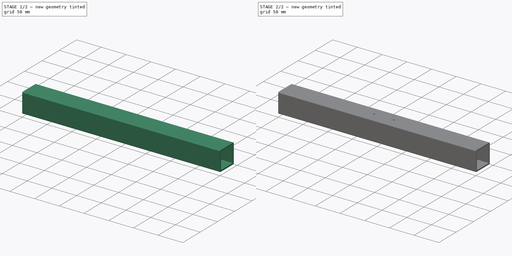
[diagram: build sequence overview — one tinted view per stage of 2, left to right]
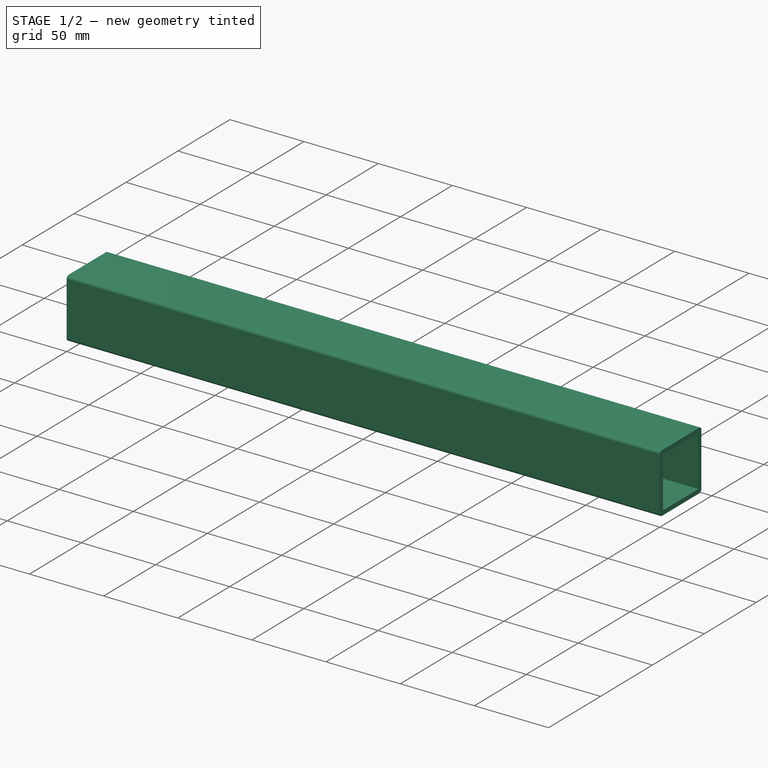
[diagram: stage 1 of 2 — iso view after this stage's code; geometry added in this stage tinted green]
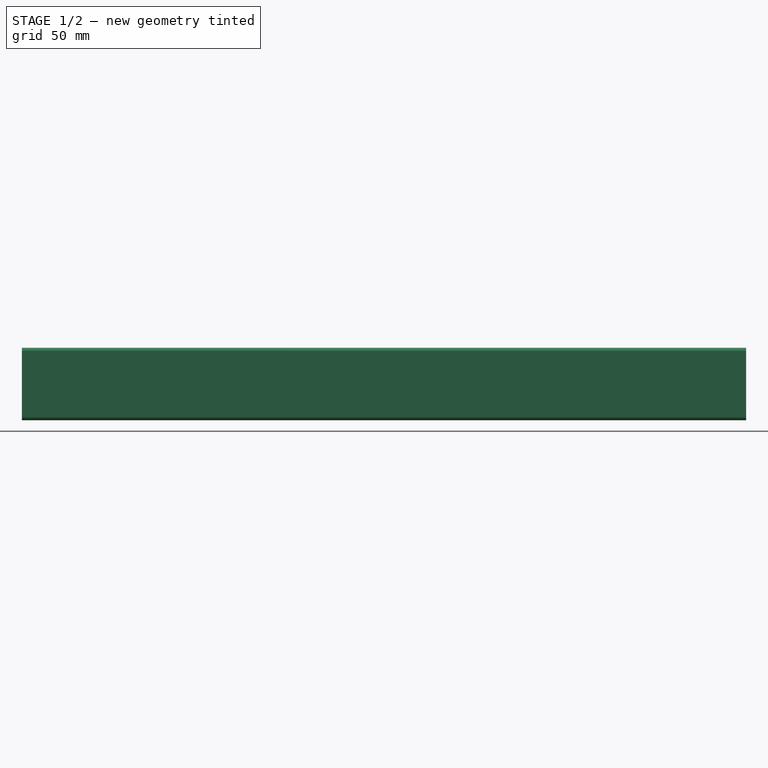
[diagram: stage 1 of 2 — front view after this stage's code; geometry added in this stage tinted green]
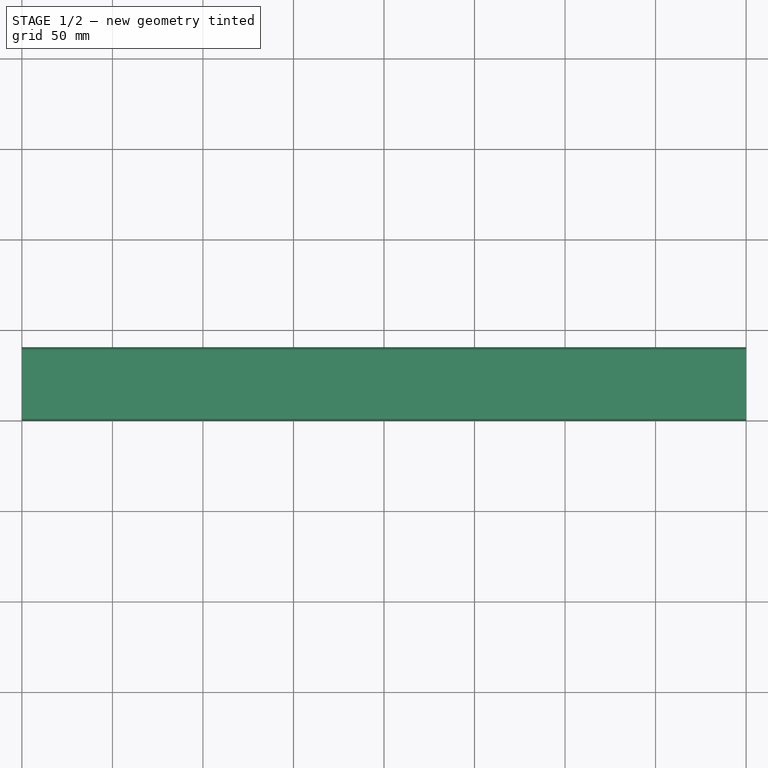
[diagram: stage 1 of 2 — top view after this stage's code; geometry added in this stage tinted green]
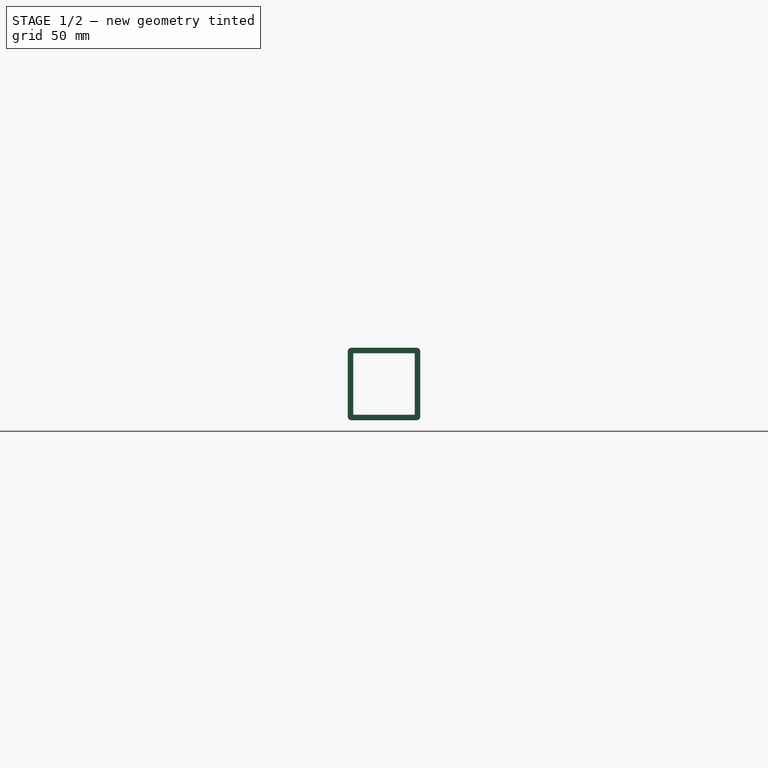
[diagram: stage 1 of 2 — right view after this stage's code; geometry added in this stage tinted green]
FCSTD DOCUMENT  (FreeCAD 1.0R39319 (Git))
Label: x-stepper-mounting-profile
License: All rights reserved
LicenseURL: http://en.wikipedia.org/wiki/All_rights_reserved
objects: Sketcher::SketchObject×2, PartDesign::Pad×1, PartDesign::Hole×1, PartDesign::Body×1, App::Part×1
note: 11 computed .brp shape members not serialized (recipe doc carries the construction recipe); baked Part::Feature solids carry a one-line shape summary decoded from their .brp

FEATURE [Sketcher::SketchObject] Sketch
  ArcFitTolerance = 1e-06
  AttachmentSupport = -> [YZ_Plane]
  FullyConstrained = true
  MakeInternals = false
  MapMode = 5
  Placement = pos=(0,0,0) rot=(0.57735,0.57735,0.57735;2.0944rad)
  sketch-geometry (18):
    g0: LineSegment StartX=2 StartY=0 StartZ=0 EndX=38 EndY=0 EndZ=0
    g1: LineSegment StartX=40 StartY=2 StartZ=0 EndX=40 EndY=38 EndZ=0
    g2: LineSegment StartX=38 StartY=40 StartZ=0 EndX=2 EndY=40 EndZ=0
    g3: LineSegment StartX=0 StartY=38 StartZ=0 EndX=0 EndY=2 EndZ=0
    g4: ArcOfCircle CenterX=2 CenterY=2 CenterZ=0 NormalX=0 NormalY=0 NormalZ=1 AngleXU=0 Radius=2 StartAngle=3.14159 EndAngle=4.71239
    g5: ArcOfCircle CenterX=38 CenterY=2 CenterZ=0 NormalX=0 NormalY=0 NormalZ=1 AngleXU=0 Radius=2 StartAngle=4.71239 EndAngle=6.28319
    g6: ArcOfCircle CenterX=38 CenterY=38 CenterZ=0 NormalX=0 NormalY=0 NormalZ=1 AngleXU=0 Radius=2 StartAngle=0 EndAngle=1.5708
    g7: ArcOfCircle CenterX=2 CenterY=38 CenterZ=0 NormalX=0 NormalY=0 NormalZ=1 AngleXU=0 Radius=2 StartAngle=1.5708 EndAngle=3.14159
    g8: LineSegment StartX=3 StartY=3 StartZ=0 EndX=37 EndY=3 EndZ=0
    g9: LineSegment StartX=37 StartY=3 StartZ=0 EndX=37 EndY=37 EndZ=0
    g10: LineSegment StartX=37 StartY=37 StartZ=0 EndX=3 EndY=37 EndZ=0
    g11: LineSegment StartX=3 StartY=37 StartZ=0 EndX=3 EndY=3 EndZ=0
    g12: LineSegment [constr] StartX=2 StartY=2 StartZ=0 EndX=3 EndY=3 EndZ=0
    g13: LineSegment [constr] StartX=38 StartY=2 StartZ=0 EndX=37 EndY=3 EndZ=0
    g14: LineSegment [constr] StartX=38 StartY=38 StartZ=0 EndX=37 EndY=37 EndZ=0
    g15: LineSegment [constr] StartX=2 StartY=38 StartZ=0 EndX=3 EndY=37 EndZ=0
    g16: GeomPoint [constr] X=0 Y=0 Z=0
    g17: GeomPoint [constr] X=40 Y=40 Z=0
  constraints (43):
    c: Tangent(g0,g4) = -1.5708
    c: Tangent(g0,g5) = -1.5708
    c: Tangent(g1,g5) = -1.5708
    c: Tangent(g1,g6) = -1.5708
    c: Tangent(g2,g6) = -1.5708
    c: Tangent(g2,g7) = -1.5708
    c: Tangent(g3,g7) = -1.5708
    c: Tangent(g3,g4) = -1.5708
    c: Horizontal(g0)
    c: Horizontal(g2)
    c: Vertical(g1)
    c: Vertical(g3)
    c: Equal(g4,g5)
    c: Equal(g5,g6)
    c: Equal(g6,g7)
    c: Coincident(g8,g9)
    c: Coincident(g9,g10)
    c: Coincident(g10,g11)
    c: Coincident(g11,g8)
    c: Horizontal(g8)
    c: Horizontal(g10)
    c: Vertical(g9)
    c: Vertical(g11)
    c: Coincident(g12,g4)
    c: Coincident(g12,g8)
    c: Coincident(g13,g5)
    c: Coincident(g13,g9)
    c: Coincident(g14,g6)
    c: Coincident(g14,g10)
    c: Coincident(g15,g7)
    c: Coincident(g15,g11)
    c: Perpendicular(g12,g13)
    c: Perpendicular(g13,g14)
    c: Perpendicular(g14,g15)
    c: PointOnObject(g16,g0)
    c: PointOnObject(g16,g3)
    c: PointOnObject(g17,g1)
    c: PointOnObject(g17,g2)
    c: Distance(g1,g3) = 40
    c: Distance(g0,g2) = 40
    c: Radius(g5) = 2
    c: Distance(g8,g0) = 3
    c: Coincident(g16,g-1)
FEATURE [PartDesign::Pad] Pad
  Direction = (1,0,0)
  Length = 400
  Length2 = 10
  Placement = pos=(0,0,0) rot=(1,1,1;2.0944rad)
  Profile = -> Sketch
  ReferenceAxis = -> Sketch [N_Axis]
  Suppressed = false
  Type = 0
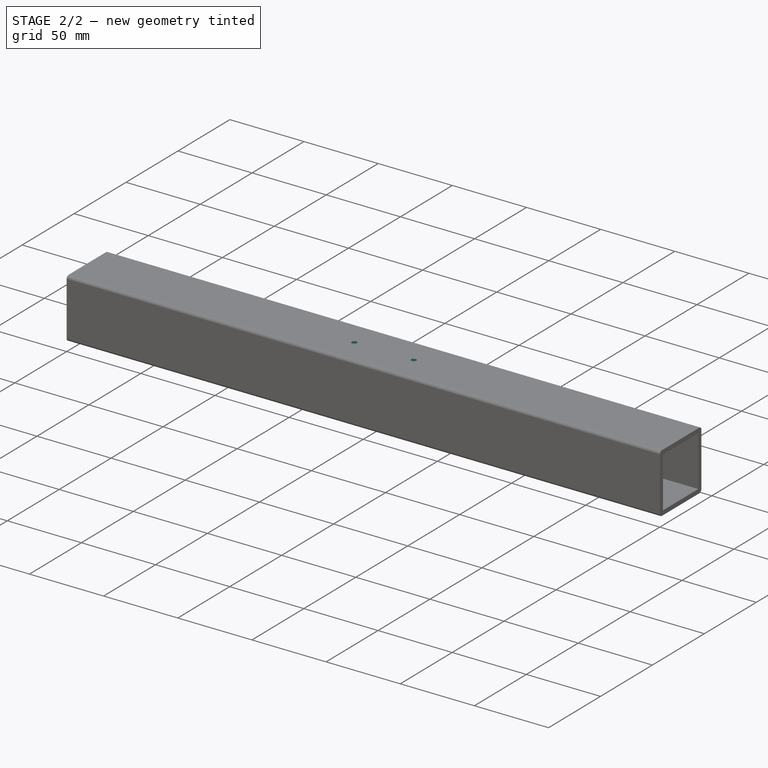
[diagram: stage 2 of 2 — iso view after this stage's code; geometry added in this stage tinted green]
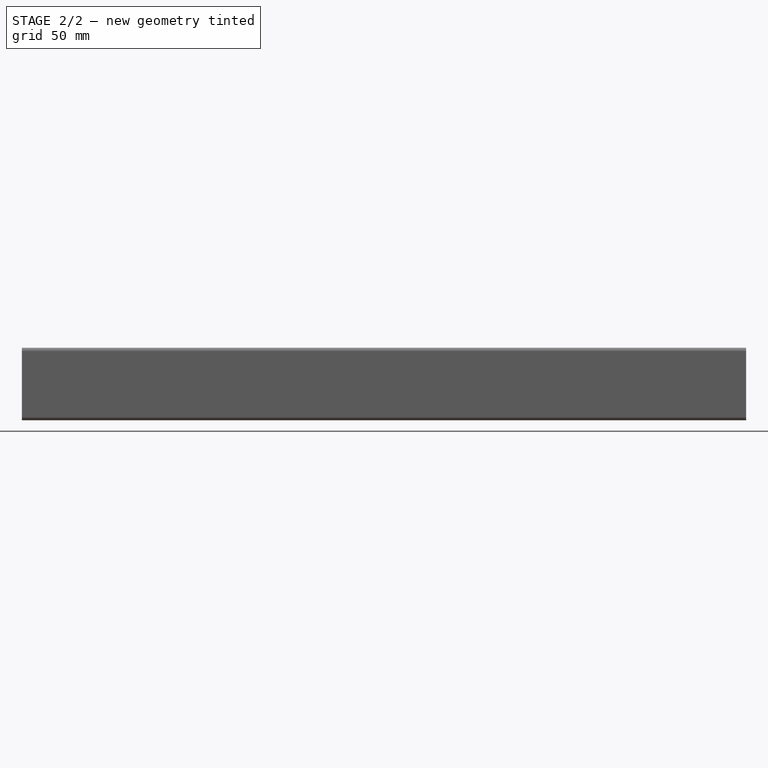
[diagram: stage 2 of 2 — front view after this stage's code; geometry added in this stage tinted green]
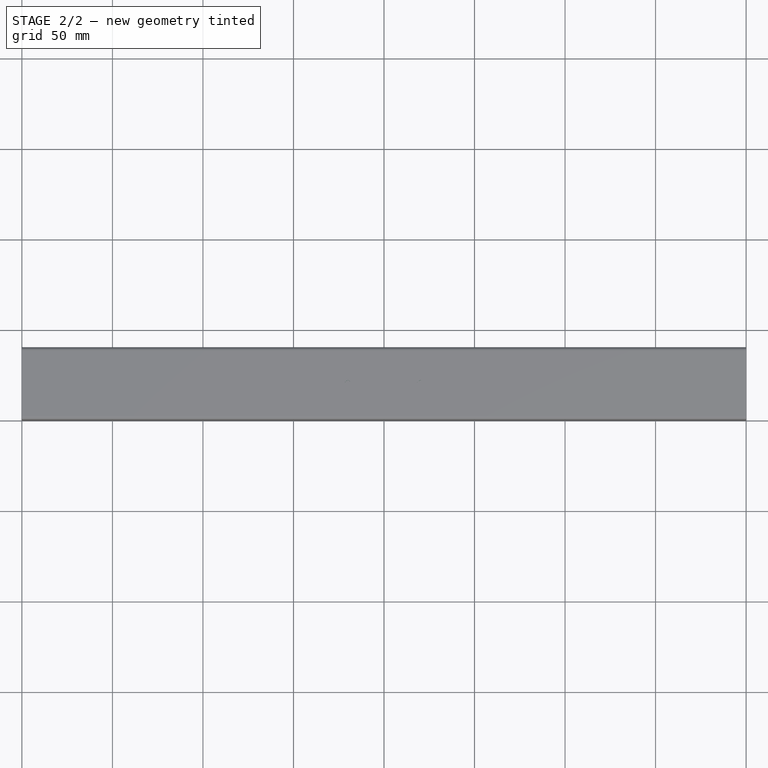
[diagram: stage 2 of 2 — top view after this stage's code; geometry added in this stage tinted green]
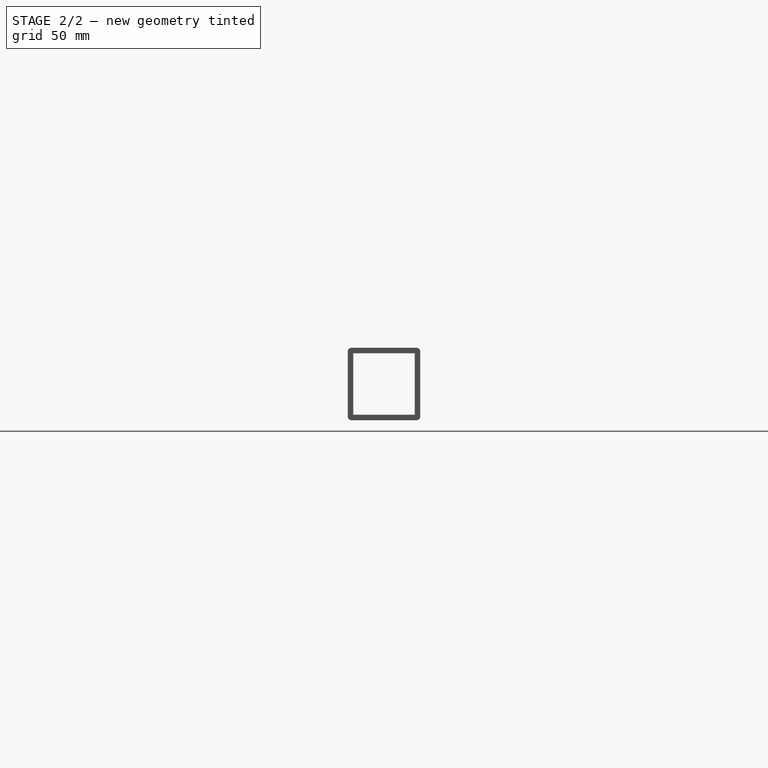
[diagram: stage 2 of 2 — right view after this stage's code; geometry added in this stage tinted green]
FEATURE [Sketcher::SketchObject] Sketch001
  ArcFitTolerance = 1e-06
  AttachmentSupport = -> [Pad]
  FullyConstrained = false
  MakeInternals = false
  MapMode = 5
  Placement = pos=(0,8.8e-15,40) rot=(0,0,-1;1.5708rad)
  sketch-geometry (5):
    g0: LineSegment [constr] StartX=0 StartY=0 StartZ=0 EndX=0 EndY=400 EndZ=0
    g1: LineSegment [constr] StartX=0 StartY=0 StartZ=0 EndX=-40 EndY=0 EndZ=0
    g2: LineSegment [constr] StartX=0 StartY=200 StartZ=0 EndX=-40 EndY=200 EndZ=0
    g3: Circle CenterX=-20 CenterY=180 CenterZ=0 NormalX=0 NormalY=0 NormalZ=1 AngleXU=0 Radius=2
    g4: Circle CenterX=-20 CenterY=220 CenterZ=0 NormalX=0 NormalY=0 NormalZ=1 AngleXU=0 Radius=2
  constraints (12):
    c: Distance(g0) = 400
    c: Coincident(g0,g-1)
    c: Vertical(g0)
    c: Distance(g1) = 40
    c: Coincident(g1,g0)
    c: PointOnObject(g1,g-1)
    c: Distance(g2) = 40
    c: Symmetric(g0,g0,g2)
    c: Horizontal(g2)
    c: Diameter(g3) = 4
    c: Distance(g3,g2) = 20
    c: Diameter(g4) = 4
FEATURE [PartDesign::Hole] Hole
  BaseFeature = -> Pad
  CustomThreadClearance = 0
  Depth = 25
  DepthType = 0
  Diameter = 3.3
  DrillForDepth = false
  DrillPoint = 1
  DrillPointAngle = 118
  HoleCutCountersinkAngle = 90
  HoleCutCustomValues = false
  HoleCutDepth = 0
  HoleCutDiameter = 6.1
  HoleCutType = 0
  ModelThread = false
  Placement = pos=(0,0,0) rot=(1,1,1;2.0944rad)
  Profile = -> Sketch001
  Suppressed = false
  Tapered = false
  TaperedAngle = 90
  ThreadClass = 0
  ThreadDepth = 25
  ThreadDepthType = 0
  ThreadDirection = 0
  ThreadFit = 0
  ThreadSize = 11
  ThreadType = 1
  Threaded = true
  UseCustomThreadClearance = false
FEATURE [PartDesign::Body] Body
  AllowCompound = false
  Group = -> [Sketch,Pad,Sketch001,Hole]
  Origin = -> Origin
  Tip = -> Hole
FEATURE [App::Part] Part  label="x-stepper-mounting-profile"
  Group = -> [Body]
  Origin = -> Origin001
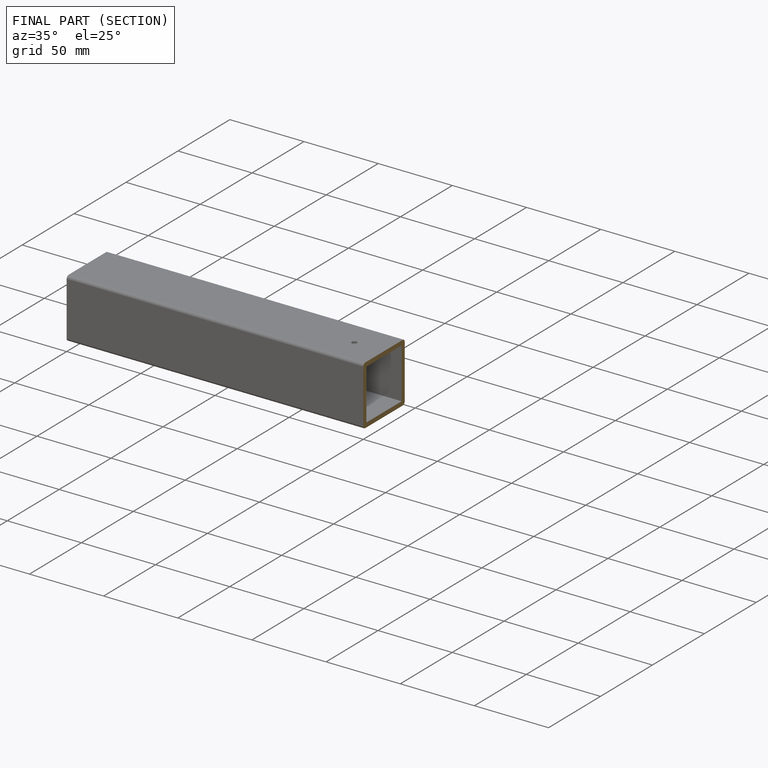
[diagram: finished part — half-section view (interior)]
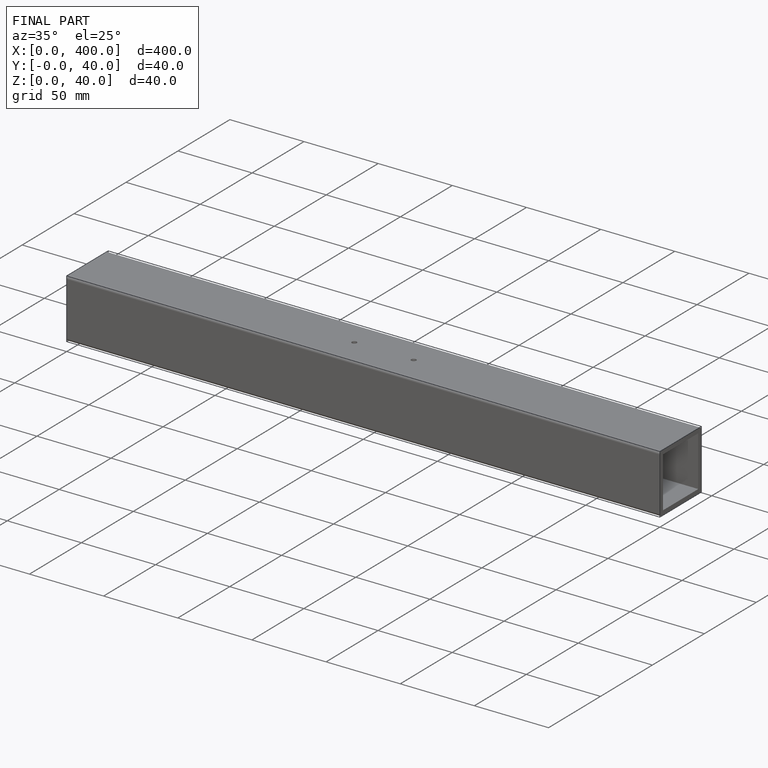
[diagram: finished part — iso view with bounding-box wireframe]
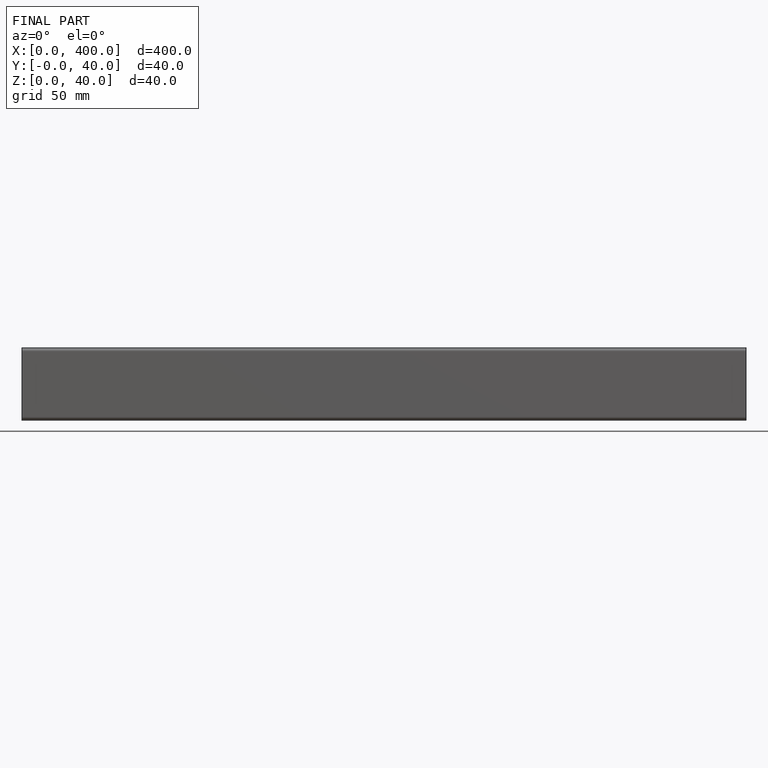
[diagram: finished part — front view with bounding-box wireframe]
